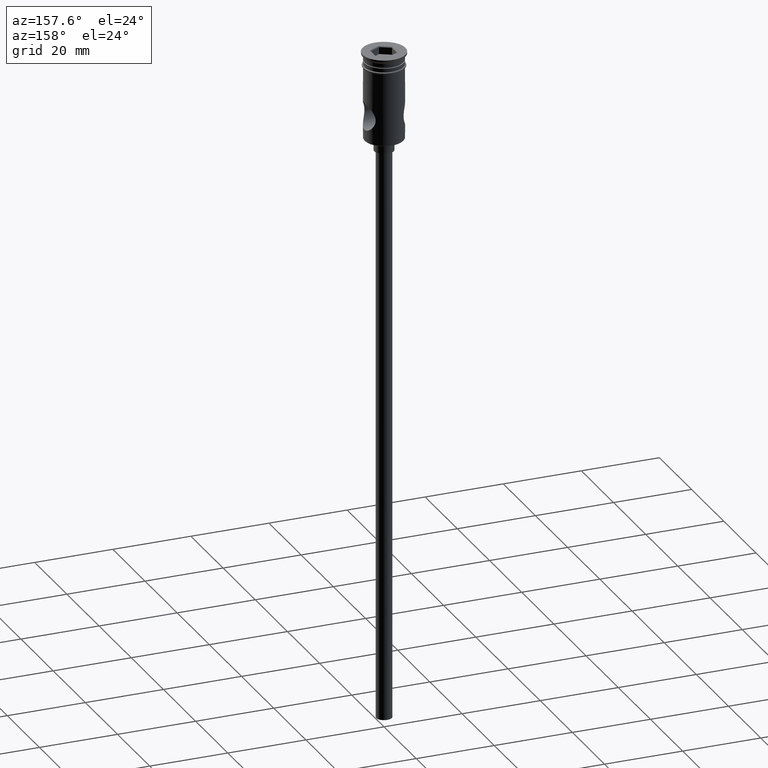
[diagram: clean part render]
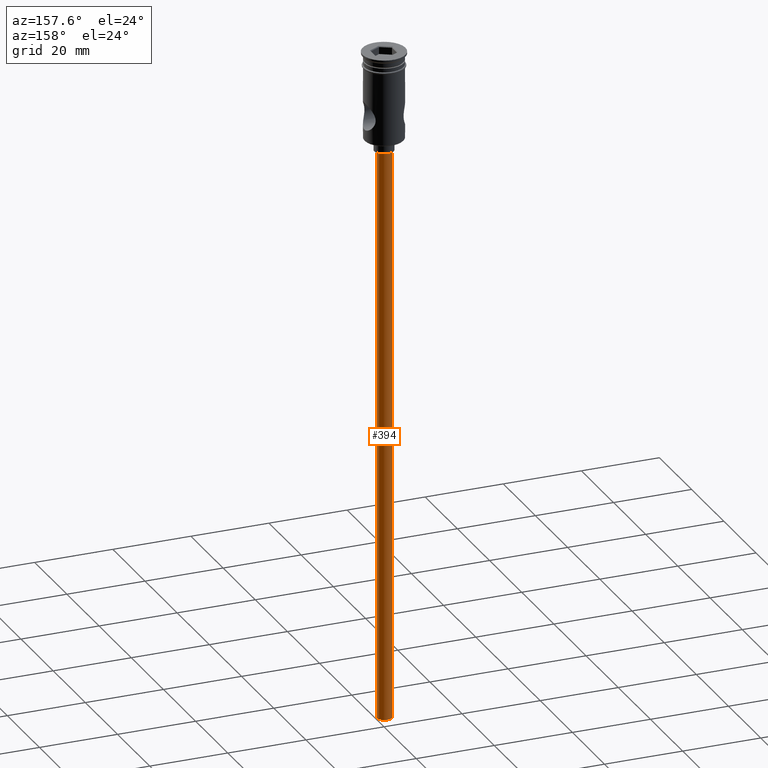
[diagram: same view with one face highlighted and labeled with its STEP entity id]
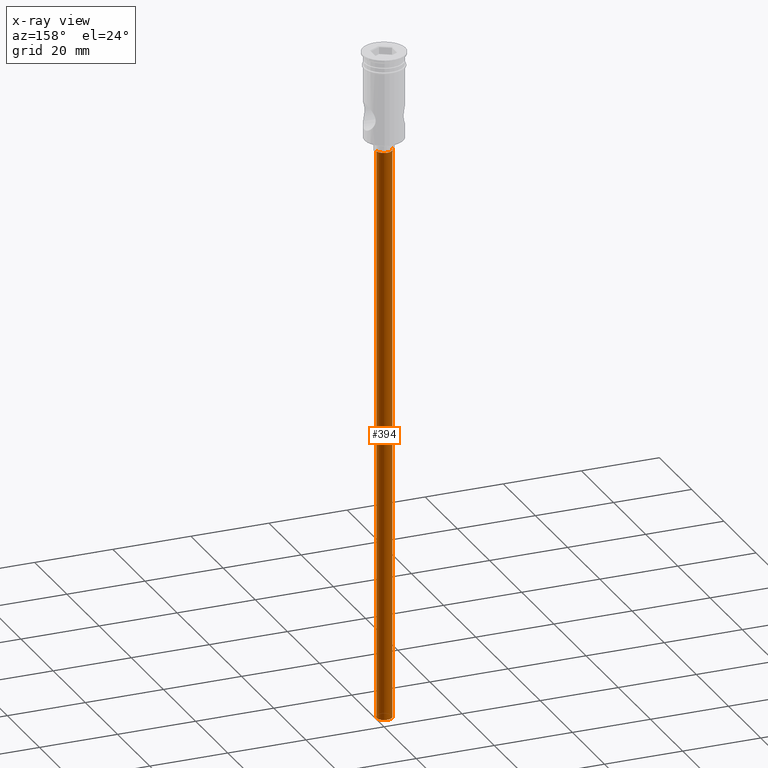
[diagram: x-ray of the same camera — body ghosted, the highlighted face saturated]
A machine part, auxiliary view. The second image highlights one B-rep face of the part: STEP entity #394.
The next image is the same camera in x-ray: the body ghosted, the highlighted face saturated — about 0% of this face is hidden behind the body in this view.
In plain terms, the highlighted cylindrical surface (edge-blend (fillet) strip) has radius 2 mm, axis along (-0, -0, 1).
Its self-contained STEP definition (entity closure, byte-faithful):
#117 = DIRECTION ( 'NONE',  ( 1.000000000000000000, 0.000000000000000000, 0.000000000000000000 ) ) ;
#130 = ORIENTED_EDGE ( 'NONE', *, *, #186, .F. ) ;
#140 = DIRECTION ( 'NONE',  ( -0.000000000000000000, -0.000000000000000000, 1.000000000000000000 ) ) ;
#186 = EDGE_CURVE ( 'NONE', #1296, #1289, #614, .T. ) ;
#225 = VECTOR ( 'NONE', #735, 1000.000000000000000 ) ;
#273 = VERTEX_POINT ( 'NONE', #736 ) ;
#286 = CARTESIAN_POINT ( 'NONE',  ( -2.000000000000000000, 2.449293598294706414E-16, -172.5000000000000000 ) ) ;
#292 = CARTESIAN_POINT ( 'NONE',  ( 2.000000000000000000, 0.000000000000000000, -172.5000000000000000 ) ) ;
#344 = FACE_OUTER_BOUND ( 'NONE', #385, .T. ) ;
#373 = CIRCLE ( 'NONE', #1319, 2.000000000000000000 ) ;
#375 = EDGE_CURVE ( 'NONE', #1296, #273, #463, .T. ) ;
#385 = EDGE_LOOP ( 'NONE', ( #130, #1295, #1369, #599 ) ) ;
#387 = LINE ( 'NONE', #292, #225 ) ;
#394 = ADVANCED_FACE ( 'NONE', ( #344 ), #824, .T. ) ;
#463 = LINE ( 'NONE', #787, #1044 ) ;
#536 = VERTEX_POINT ( 'NONE', #1170 ) ;
#542 = EDGE_CURVE ( 'NONE', #1289, #536, #387, .T. ) ;
#554 = DIRECTION ( 'NONE',  ( 0.000000000000000000, 0.000000000000000000, -1.000000000000000000 ) ) ;
#599 = ORIENTED_EDGE ( 'NONE', *, *, #542, .F. ) ;
#614 = CIRCLE ( 'NONE', #1450, 2.000000000000000000 ) ;
#735 = DIRECTION ( 'NONE',  ( -0.000000000000000000, -0.000000000000000000, 1.000000000000000000 ) ) ;
#736 = CARTESIAN_POINT ( 'NONE',  ( -2.000000000000000000, 2.449293598294706414E-16, -25.50000000000000000 ) ) ;
#757 = DIRECTION ( 'NONE',  ( -1.000000000000000000, 0.000000000000000000, 0.000000000000000000 ) ) ;
#787 = CARTESIAN_POINT ( 'NONE',  ( -2.000000000000000000, 2.449293598294706414E-16, -172.5000000000000000 ) ) ;
#824 = CYLINDRICAL_SURFACE ( 'NONE', #1254, 2.000000000000000000 ) ;
#839 = CARTESIAN_POINT ( 'NONE',  ( 2.000000000000000000, 0.000000000000000000, -172.5000000000000000 ) ) ;
#948 = DIRECTION ( 'NONE',  ( -1.000000000000000000, 0.000000000000000000, 0.000000000000000000 ) ) ;
#956 = DIRECTION ( 'NONE',  ( 0.000000000000000000, 0.000000000000000000, -1.000000000000000000 ) ) ;
#1044 = VECTOR ( 'NONE', #140, 1000.000000000000000 ) ;
#1087 = CARTESIAN_POINT ( 'NONE',  ( 0.000000000000000000, 0.000000000000000000, -25.50000000000000000 ) ) ;
#1170 = CARTESIAN_POINT ( 'NONE',  ( 2.000000000000000000, 0.000000000000000000, -25.50000000000000000 ) ) ;
#1254 = AXIS2_PLACEMENT_3D ( 'NONE', #1377, #1267, #117 ) ;
#1267 = DIRECTION ( 'NONE',  ( -0.000000000000000000, -0.000000000000000000, 1.000000000000000000 ) ) ;
#1289 = VERTEX_POINT ( 'NONE', #839 ) ;
#1292 = CARTESIAN_POINT ( 'NONE',  ( 0.000000000000000000, 0.000000000000000000, -172.5000000000000000 ) ) ;
#1295 = ORIENTED_EDGE ( 'NONE', *, *, #375, .T. ) ;
#1296 = VERTEX_POINT ( 'NONE', #286 ) ;
#1319 = AXIS2_PLACEMENT_3D ( 'NONE', #1087, #554, #757 ) ;
#1369 = ORIENTED_EDGE ( 'NONE', *, *, #1386, .T. ) ;
#1377 = CARTESIAN_POINT ( 'NONE',  ( 0.000000000000000000, 0.000000000000000000, -172.5000000000000000 ) ) ;
#1386 = EDGE_CURVE ( 'NONE', #273, #536, #373, .T. ) ;
#1450 = AXIS2_PLACEMENT_3D ( 'NONE', #1292, #956, #948 ) ;